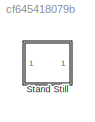
MODEL slx_cf645418079b
KIND library
CONFIG AbsTol = auto
CONFIG EnableMultiTasking = off
CONFIG FixedStep = auto
CONFIG MaxStep = auto
CONFIG MinStep = auto
CONFIG RelTol = 1e-3
CONFIG SampleTimeConstraint = Unconstrained
CONFIG SolverName = VariableStepAuto
CONFIG StartTime = 0.0
CONFIG StopTime = 10.0
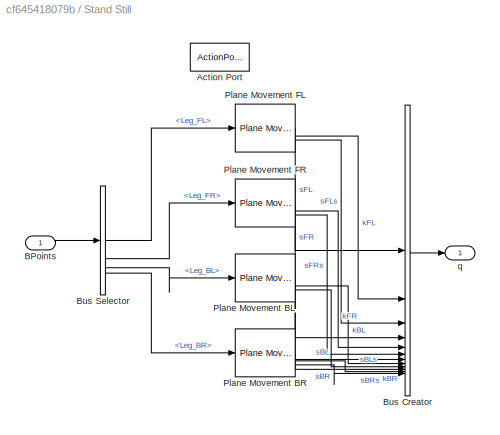
BLOCK [SubSystem] Stand Still
BLOCK [ActionPort] Stand Still/Action Port
  InitializeStates = reset
BLOCK [Inport] Stand Still/BPoints
BLOCK [BusCreator] Stand Still/Bus Creator
  DisplayOption = bar
  InheritFromInputs = on
  Inputs = 12
BLOCK [BusSelector] Stand Still/Bus Selector
  OutputSignals = Leg_FL,Leg_FR,Leg_BL,Leg_BR
BLOCK [Reference] Stand Still/Plane Movement BL  REF=Plane_Movement_stand_still/Plane Movement
  SourceBlock = Plane_Movement_stand_still/Plane Movement
  SourceType = SubSystem
BLOCK [Reference] Stand Still/Plane Movement BR  REF=Plane_Movement_stand_still/Plane Movement
  SourceBlock = Plane_Movement_stand_still/Plane Movement
  SourceType = SubSystem
BLOCK [Reference] Stand Still/Plane Movement FL  REF=Plane_Movement_stand_still/Plane Movement
  SourceBlock = Plane_Movement_stand_still/Plane Movement
  SourceType = SubSystem
BLOCK [Reference] Stand Still/Plane Movement FR  REF=Plane_Movement_stand_still/Plane Movement
  SourceBlock = Plane_Movement_stand_still/Plane Movement
  SourceType = SubSystem
BLOCK [Outport] Stand Still/q
LINE Stand Still/BPoints:1 -> Stand Still/Bus Selector:1
LINE Stand Still/Bus Creator:1 -> Stand Still/q:1
LINE Stand Still/Bus Selector:1 -> Stand Still/Plane Movement FL:1
LINE Stand Still/Bus Selector:2 -> Stand Still/Plane Movement FR:1
LINE Stand Still/Bus Selector:3 -> Stand Still/Plane Movement BL:1
LINE Stand Still/Bus Selector:4 -> Stand Still/Plane Movement BR:1
LINE Stand Still/Plane Movement BL:1 -> Stand Still/Bus Creator:7
LINE Stand Still/Plane Movement BL:2 -> Stand Still/Bus Creator:8
LINE Stand Still/Plane Movement BL:3 -> Stand Still/Bus Creator:9
LINE Stand Still/Plane Movement BR:1 -> Stand Still/Bus Creator:10
LINE Stand Still/Plane Movement BR:2 -> Stand Still/Bus Creator:11
LINE Stand Still/Plane Movement BR:3 -> Stand Still/Bus Creator:12
LINE Stand Still/Plane Movement FL:1 -> Stand Still/Bus Creator:1
LINE Stand Still/Plane Movement FL:2 -> Stand Still/Bus Creator:2
LINE Stand Still/Plane Movement FL:3 -> Stand Still/Bus Creator:3
LINE Stand Still/Plane Movement FR:1 -> Stand Still/Bus Creator:4
LINE Stand Still/Plane Movement FR:2 -> Stand Still/Bus Creator:5
LINE Stand Still/Plane Movement FR:3 -> Stand Still/Bus Creator:6
